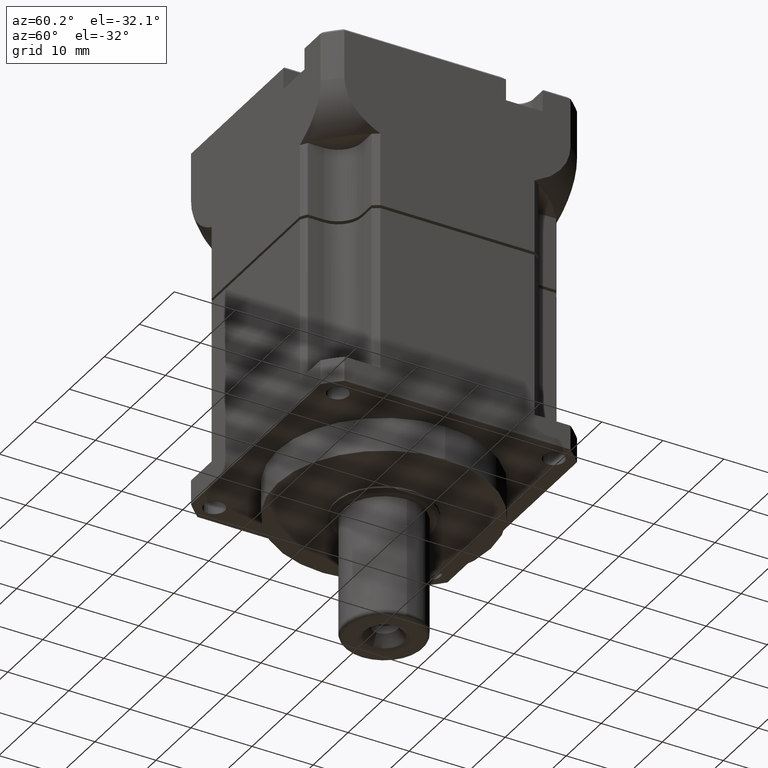
[diagram: clean part render]
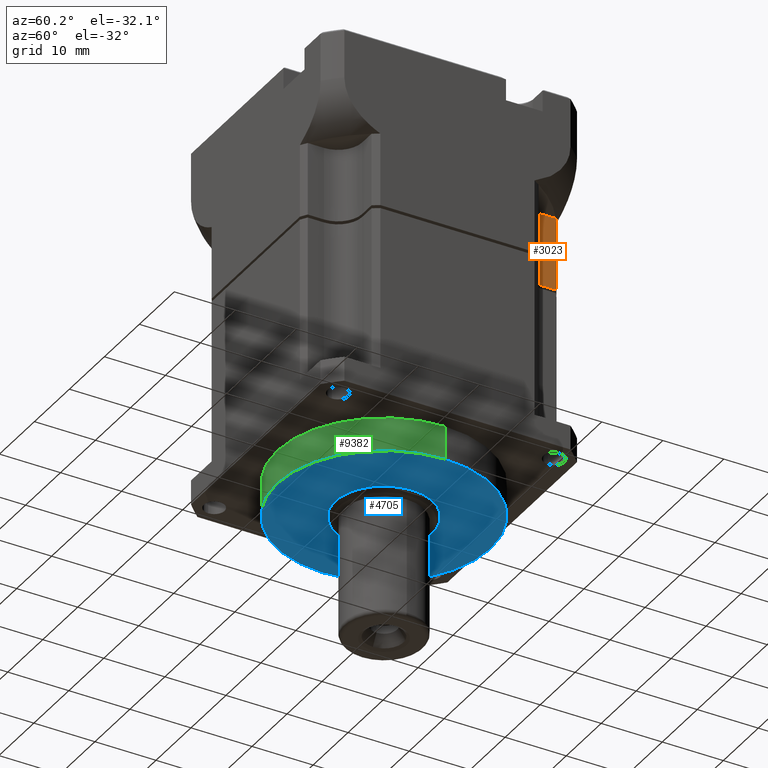
[diagram: same view with three faces highlighted in distinct colors, each labeled with its STEP entity id]
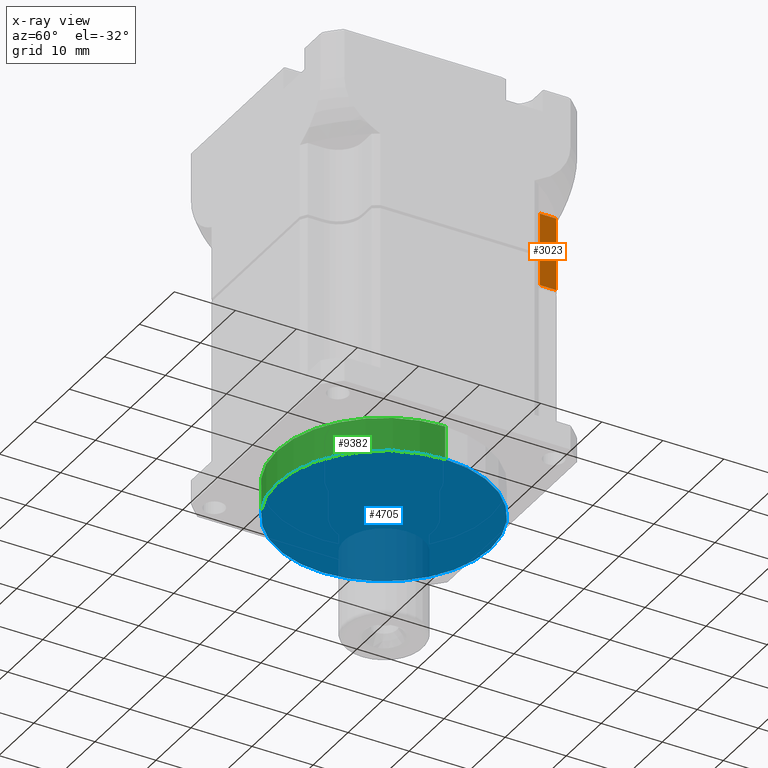
[diagram: x-ray of the same camera — body ghosted, the three highlighted faces saturated]
A machine part, auxiliary view with three faces highlighted in distinct colors.
The next image is the same camera in x-ray (body ghosted, the three faces saturated) — at least one of them is partly hidden behind the body in this view.
Their STEP definitions:

[orange] entity #3023 — the highlighted planar face has unit normal (-1, -0, -0).
#7 = CARTESIAN_POINT ( 'NONE',  ( -13.68000000000000000, 20.32504858542778300, 28.50000000000000000 ) ) ;
#190 = DIRECTION ( 'NONE',  ( 0.0000000000000000000, 0.0000000000000000000, -1.000000000000000000 ) ) ;
#257 = VERTEX_POINT ( 'NONE', #3924 ) ;
#1614 = DIRECTION ( 'NONE',  ( -0.0000000000000000000, -1.000000000000000000, 0.0000000000000000000 ) ) ;
#2211 = VERTEX_POINT ( 'NONE', #8445 ) ;
#2650 = VECTOR ( 'NONE', #3823, 1000.000000000000000 ) ;
#2912 = CARTESIAN_POINT ( 'NONE',  ( -13.67999999981521200, 17.68000000000000000, 27.99999999961860200 ) ) ;
#3023 = ADVANCED_FACE ( 'NONE', ( #4565 ), #4550, .F. ) ;
#3465 = LINE ( 'NONE', #9248, #6824 ) ;
#3719 = ORIENTED_EDGE ( 'NONE', *, *, #6894, .T. ) ;
#3723 = DIRECTION ( 'NONE',  ( 1.000000000000000000, -0.0000000000000000000, 0.0000000000000000000 ) ) ;
#3731 = VECTOR ( 'NONE', #10364, 1000.000000000000000 ) ;
#3823 = DIRECTION ( 'NONE',  ( -0.0000000000000000000, -0.0000000000000000000, 1.000000000000000000 ) ) ;
#3924 = CARTESIAN_POINT ( 'NONE',  ( -13.68000000000000000, 20.32504858541952300, 16.00000000000585800 ) ) ;
#4062 = EDGE_CURVE ( 'NONE', #2211, #8997, #3465, .T. ) ;
#4288 = CARTESIAN_POINT ( 'NONE',  ( -13.68000000000000000, 20.32504858542780100, 16.00000000000000000 ) ) ;
#4550 = PLANE ( 'NONE',  #6914 ) ;
#4565 = FACE_OUTER_BOUND ( 'NONE', #5324, .T. ) ;
#5088 = LINE ( 'NONE', #7, #3731 ) ;
#5324 = EDGE_LOOP ( 'NONE', ( #7622, #10036, #3719, #5501 ) ) ;
#5501 = ORIENTED_EDGE ( 'NONE', *, *, #4062, .F. ) ;
#6057 = EDGE_CURVE ( 'NONE', #257, #2211, #5088, .T. ) ;
#6824 = VECTOR ( 'NONE', #1614, 1000.000000000000000 ) ;
#6894 = EDGE_CURVE ( 'NONE', #10693, #8997, #10098, .T. ) ;
#6914 = AXIS2_PLACEMENT_3D ( 'NONE', #9694, #3723, #190 ) ;
#6951 = VECTOR ( 'NONE', #10234, 1000.000000000000000 ) ;
#6961 = EDGE_CURVE ( 'NONE', #10693, #257, #9291, .T. ) ;
#7622 = ORIENTED_EDGE ( 'NONE', *, *, #6057, .F. ) ;
#8445 = CARTESIAN_POINT ( 'NONE',  ( -13.68000000006305500, 20.32504858492045900, 27.99999999993695000 ) ) ;
#8997 = VERTEX_POINT ( 'NONE', #2912 ) ;
#9248 = CARTESIAN_POINT ( 'NONE',  ( -13.68000000012610900, 0.0000000000000000000, 27.99999999987389600 ) ) ;
#9291 = LINE ( 'NONE', #4288, #6951 ) ;
#9352 = CARTESIAN_POINT ( 'NONE',  ( -13.68000000000000100, 17.68000000000000000, 28.50000000000000000 ) ) ;
#9694 = CARTESIAN_POINT ( 'NONE',  ( -13.68000000000000000, 20.32504858542780100, 28.50000000000000000 ) ) ;
#10036 = ORIENTED_EDGE ( 'NONE', *, *, #6961, .F. ) ;
#10098 = LINE ( 'NONE', #9352, #2650 ) ;
#10234 = DIRECTION ( 'NONE',  ( 0.0000000000000000000, 1.000000000000000000, 0.0000000000000000000 ) ) ;
#10364 = DIRECTION ( 'NONE',  ( -0.0000000000000000000, -0.0000000000000000000, 1.000000000000000000 ) ) ;
#10693 = VERTEX_POINT ( 'NONE', #10918 ) ;
#10918 = CARTESIAN_POINT ( 'NONE',  ( -13.68000000000000100, 17.68000000000000000, 16.00000000000000000 ) ) ;

[blue] entity #4705 — the highlighted planar face has unit normal (0, 0, -1).
#1142 = CIRCLE ( 'NONE', #8224, 17.50000000000007100 ) ;
#1501 = VERTEX_POINT ( 'NONE', #4712 ) ;
#1926 = AXIS2_PLACEMENT_3D ( 'NONE', #2129, #9877, #6504 ) ;
#2078 = AXIS2_PLACEMENT_3D ( 'NONE', #10910, #9939, #6530 ) ;
#2129 = CARTESIAN_POINT ( 'NONE',  ( 3653.603875950606400, 1416.338132475112200, -9.500000000000000000 ) ) ;
#3298 = CARTESIAN_POINT ( 'NONE',  ( 3636.103875950605900, 1416.338132475112200, -9.500000000000000000 ) ) ;
#3949 = VERTEX_POINT ( 'NONE', #3298 ) ;
#4316 = DIRECTION ( 'NONE',  ( -1.000000000000000000, 0.0000000000000000000, 0.0000000000000000000 ) ) ;
#4705 = ADVANCED_FACE ( 'NONE', ( #10444 ), #5674, .T. ) ;
#4712 = CARTESIAN_POINT ( 'NONE',  ( 3671.103875950606400, 1416.338132475112200, -9.500000000000000000 ) ) ;
#5638 = ORIENTED_EDGE ( 'NONE', *, *, #6014, .T. ) ;
#5674 = PLANE ( 'NONE',  #2078 ) ;
#6014 = EDGE_CURVE ( 'NONE', #3949, #1501, #1142, .T. ) ;
#6088 = EDGE_LOOP ( 'NONE', ( #9655, #5638 ) ) ;
#6504 = DIRECTION ( 'NONE',  ( -1.000000000000000000, 0.0000000000000000000, 0.0000000000000000000 ) ) ;
#6530 = DIRECTION ( 'NONE',  ( -1.000000000000000000, 0.0000000000000000000, -0.0000000000000000000 ) ) ;
#7151 = CIRCLE ( 'NONE', #1926, 17.50000000000007100 ) ;
#7902 = DIRECTION ( 'NONE',  ( 0.0000000000000000000, 0.0000000000000000000, -1.000000000000000000 ) ) ;
#8224 = AXIS2_PLACEMENT_3D ( 'NONE', #9464, #7902, #4316 ) ;
#8991 = EDGE_CURVE ( 'NONE', #1501, #3949, #7151, .T. ) ;
#9464 = CARTESIAN_POINT ( 'NONE',  ( 3653.603875950606400, 1416.338132475112200, -9.500000000000000000 ) ) ;
#9655 = ORIENTED_EDGE ( 'NONE', *, *, #8991, .T. ) ;
#9877 = DIRECTION ( 'NONE',  ( 0.0000000000000000000, 0.0000000000000000000, -1.000000000000000000 ) ) ;
#9939 = DIRECTION ( 'NONE',  ( 0.0000000000000000000, 0.0000000000000000000, -1.000000000000000000 ) ) ;
#10444 = FACE_OUTER_BOUND ( 'NONE', #6088, .T. ) ;
#10910 = CARTESIAN_POINT ( 'NONE',  ( 3653.603875950606400, 1416.338132475112200, -9.500000000000000000 ) ) ;

[green] entity #9382 — the highlighted cylindrical surface (partial cylindrical patch) has radius 17.5 mm, axis along (0, 0, 1).
#16 = EDGE_CURVE ( 'NONE', #1501, #43, #904, .T. ) ;
#43 = VERTEX_POINT ( 'NONE', #4616 ) ;
#412 = ORIENTED_EDGE ( 'NONE', *, *, #8991, .F. ) ;
#904 = LINE ( 'NONE', #2591, #5510 ) ;
#962 = EDGE_LOOP ( 'NONE', ( #6162, #412, #9515, #5472 ) ) ;
#1501 = VERTEX_POINT ( 'NONE', #4712 ) ;
#1926 = AXIS2_PLACEMENT_3D ( 'NONE', #2129, #9877, #6504 ) ;
#1968 = EDGE_CURVE ( 'NONE', #3949, #2042, #8955, .T. ) ;
#2042 = VERTEX_POINT ( 'NONE', #6485 ) ;
#2129 = CARTESIAN_POINT ( 'NONE',  ( 3653.603875950606400, 1416.338132475112200, -9.500000000000000000 ) ) ;
#2591 = CARTESIAN_POINT ( 'NONE',  ( 3671.103875950606400, 1416.338132475112200, -9.500000000000000000 ) ) ;
#2863 = CARTESIAN_POINT ( 'NONE',  ( 3636.103875950605900, 1416.338132475112200, -9.500000000000000000 ) ) ;
#3033 = AXIS2_PLACEMENT_3D ( 'NONE', #11052, #8489, #9376 ) ;
#3298 = CARTESIAN_POINT ( 'NONE',  ( 3636.103875950605900, 1416.338132475112200, -9.500000000000000000 ) ) ;
#3486 = DIRECTION ( 'NONE',  ( -0.0000000000000000000, -0.0000000000000000000, 1.000000000000000000 ) ) ;
#3949 = VERTEX_POINT ( 'NONE', #3298 ) ;
#4586 = VECTOR ( 'NONE', #10760, 1000.000000000000000 ) ;
#4616 = CARTESIAN_POINT ( 'NONE',  ( 3671.103875950606400, 1416.338132475112200, -4.000000000000000000 ) ) ;
#4712 = CARTESIAN_POINT ( 'NONE',  ( 3671.103875950606400, 1416.338132475112200, -9.500000000000000000 ) ) ;
#5313 = DIRECTION ( 'NONE',  ( -1.000000000000000000, 0.0000000000000000000, 0.0000000000000000000 ) ) ;
#5472 = ORIENTED_EDGE ( 'NONE', *, *, #7718, .T. ) ;
#5510 = VECTOR ( 'NONE', #3486, 1000.000000000000000 ) ;
#5582 = CIRCLE ( 'NONE', #8242, 17.50000000000007100 ) ;
#6162 = ORIENTED_EDGE ( 'NONE', *, *, #1968, .F. ) ;
#6437 = FACE_OUTER_BOUND ( 'NONE', #962, .T. ) ;
#6485 = CARTESIAN_POINT ( 'NONE',  ( 3636.103875950605900, 1416.338132475112200, -4.000000000000000000 ) ) ;
#6504 = DIRECTION ( 'NONE',  ( -1.000000000000000000, 0.0000000000000000000, 0.0000000000000000000 ) ) ;
#6800 = DIRECTION ( 'NONE',  ( 0.0000000000000000000, 0.0000000000000000000, -1.000000000000000000 ) ) ;
#7151 = CIRCLE ( 'NONE', #1926, 17.50000000000007100 ) ;
#7718 = EDGE_CURVE ( 'NONE', #43, #2042, #5582, .T. ) ;
#8242 = AXIS2_PLACEMENT_3D ( 'NONE', #8542, #6800, #5313 ) ;
#8489 = DIRECTION ( 'NONE',  ( -0.0000000000000000000, -0.0000000000000000000, 1.000000000000000000 ) ) ;
#8542 = CARTESIAN_POINT ( 'NONE',  ( 3653.603875950606400, 1416.338132475112200, -4.000000000000000000 ) ) ;
#8955 = LINE ( 'NONE', #2863, #4586 ) ;
#8991 = EDGE_CURVE ( 'NONE', #1501, #3949, #7151, .T. ) ;
#9376 = DIRECTION ( 'NONE',  ( 1.000000000000000000, 0.0000000000000000000, 0.0000000000000000000 ) ) ;
#9382 = ADVANCED_FACE ( 'NONE', ( #6437 ), #11214, .T. ) ;
#9515 = ORIENTED_EDGE ( 'NONE', *, *, #16, .T. ) ;
#9877 = DIRECTION ( 'NONE',  ( 0.0000000000000000000, 0.0000000000000000000, -1.000000000000000000 ) ) ;
#10760 = DIRECTION ( 'NONE',  ( -0.0000000000000000000, -0.0000000000000000000, 1.000000000000000000 ) ) ;
#11052 = CARTESIAN_POINT ( 'NONE',  ( 3653.603875950606400, 1416.338132475112200, -9.500000000000000000 ) ) ;
#11214 = CYLINDRICAL_SURFACE ( 'NONE', #3033, 17.50000000000007100 ) ;